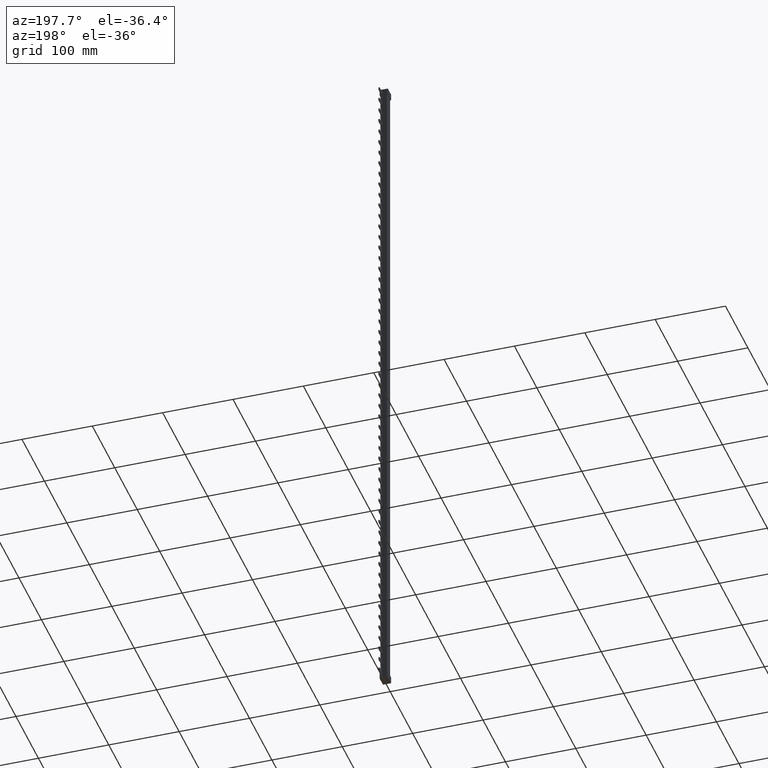
[diagram: clean part render]
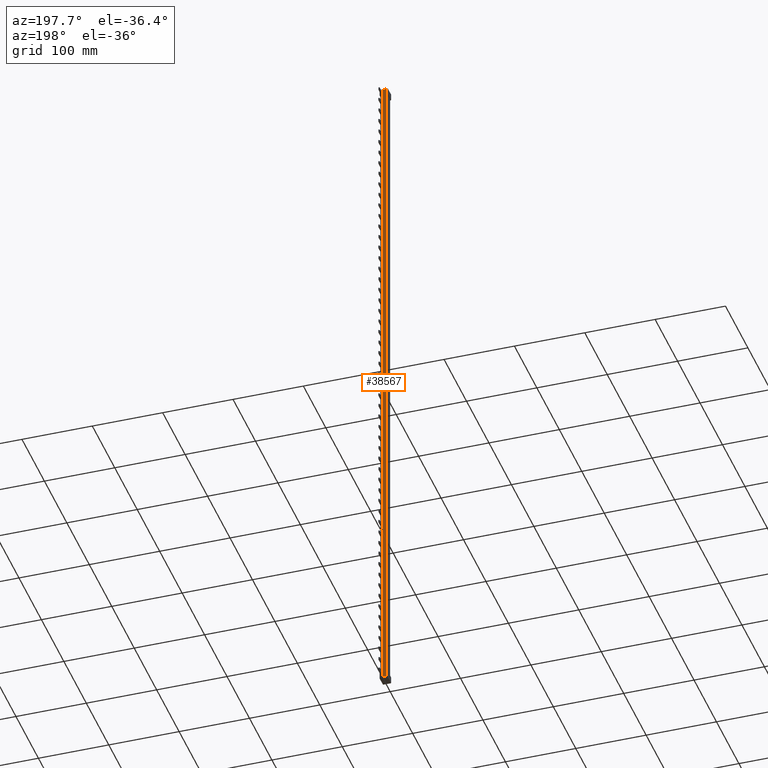
[diagram: same view with one face highlighted and labeled with its STEP entity id]
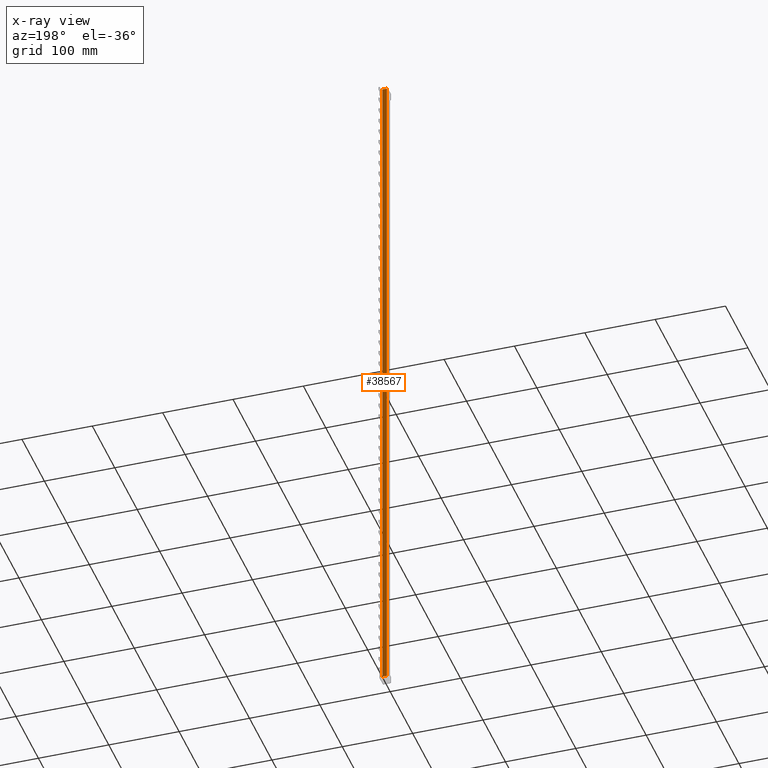
[diagram: x-ray of the same camera — body ghosted, the highlighted face saturated]
A machine part, auxiliary view. The second image highlights one B-rep face of the part: STEP entity #38567.
The next image is the same camera in x-ray: the body ghosted, the highlighted face saturated — about 0% of this face is hidden behind the body in this view.
In plain terms, the highlighted planar face has unit normal (0, -1, 0).
Its self-contained STEP definition (entity closure, byte-faithful):
#2771 = EDGE_CURVE ( 'NONE', #24084, #24040, #46780, .T. ) ;
#3067 = EDGE_CURVE ( 'NONE', #24084, #24096, #47393, .T. ) ;
#3085 = EDGE_CURVE ( 'NONE', #24095, #24096, #46339, .T. ) ;
#3173 = EDGE_CURVE ( 'NONE', #24040, #24095, #32651, .T. ) ;
#16937 = EDGE_LOOP ( 'NONE', ( #22644, #22676, #22597, #22673 ) ) ;
#22597 = ORIENTED_EDGE ( 'NONE', *, *, #3173, .F. ) ;
#22644 = ORIENTED_EDGE ( 'NONE', *, *, #3067, .T. ) ;
#22673 = ORIENTED_EDGE ( 'NONE', *, *, #2771, .F. ) ;
#22676 = ORIENTED_EDGE ( 'NONE', *, *, #3085, .F. ) ;
#24040 = VERTEX_POINT ( 'NONE', #80334 ) ;
#24084 = VERTEX_POINT ( 'NONE', #80492 ) ;
#24095 = VERTEX_POINT ( 'NONE', #80464 ) ;
#24096 = VERTEX_POINT ( 'NONE', #80496 ) ;
#32651 = LINE ( 'NONE', #32672, #66683 ) ;
#32658 = DIRECTION ( 'NONE',  ( -0.0000000000000000000, 0.0000000000000000000, 1.000000000000000000 ) ) ;
#32672 = CARTESIAN_POINT ( 'NONE',  ( 6.499999999999950300, 14.99999999999998600, 217.7999999999999800 ) ) ;
#35618 = AXIS2_PLACEMENT_3D ( 'NONE', #49843, #49849, #49847 ) ;
#38567 = ADVANCED_FACE ( 'NONE', ( #49829 ), #49833, .F. ) ;
#46339 = LINE ( 'NONE', #46363, #66669 ) ;
#46363 = CARTESIAN_POINT ( 'NONE',  ( 6.499999999999950300, 14.99999999999998600, 217.7999999999999800 ) ) ;
#46364 = DIRECTION ( 'NONE',  ( -1.000000000000000000, -0.0000000000000000000, -0.0000000000000000000 ) ) ;
#46769 = CARTESIAN_POINT ( 'NONE',  ( 6.499999999999950300, 14.99999999999998600, -769.8000000000000700 ) ) ;
#46780 = LINE ( 'NONE', #46769, #66468 ) ;
#46785 = DIRECTION ( 'NONE',  ( 1.000000000000000000, 0.0000000000000000000, 0.0000000000000000000 ) ) ;
#47375 = DIRECTION ( 'NONE',  ( -0.0000000000000000000, -0.0000000000000000000, 1.000000000000000000 ) ) ;
#47382 = CARTESIAN_POINT ( 'NONE',  ( 0.0000000000000000000, 14.99999999999998600, 217.7999999999999800 ) ) ;
#47393 = LINE ( 'NONE', #47382, #66593 ) ;
#49829 = FACE_OUTER_BOUND ( 'NONE', #16937, .T. ) ;
#49833 = PLANE ( 'NONE',  #35618 ) ;
#49843 = CARTESIAN_POINT ( 'NONE',  ( 6.499999999999950300, 14.99999999999998600, 217.7999999999999800 ) ) ;
#49847 = DIRECTION ( 'NONE',  ( 0.0000000000000000000, -0.0000000000000000000, -1.000000000000000000 ) ) ;
#49849 = DIRECTION ( 'NONE',  ( 0.0000000000000000000, -1.000000000000000000, 0.0000000000000000000 ) ) ;
#66468 = VECTOR ( 'NONE', #46785, 1000.000000000000000 ) ;
#66593 = VECTOR ( 'NONE', #47375, 1000.000000000000000 ) ;
#66669 = VECTOR ( 'NONE', #46364, 1000.000000000000000 ) ;
#66683 = VECTOR ( 'NONE', #32658, 1000.000000000000000 ) ;
#80334 = CARTESIAN_POINT ( 'NONE',  ( 6.499999999999950300, 14.99999999999998600, -769.8000000000000700 ) ) ;
#80464 = CARTESIAN_POINT ( 'NONE',  ( 6.499999999999950300, 14.99999999999998600, 217.7999999999999800 ) ) ;
#80492 = CARTESIAN_POINT ( 'NONE',  ( 0.0000000000000000000, 14.99999999999998600, -769.8000000000000700 ) ) ;
#80496 = CARTESIAN_POINT ( 'NONE',  ( 0.0000000000000000000, 14.99999999999998600, 217.7999999999999800 ) ) ;